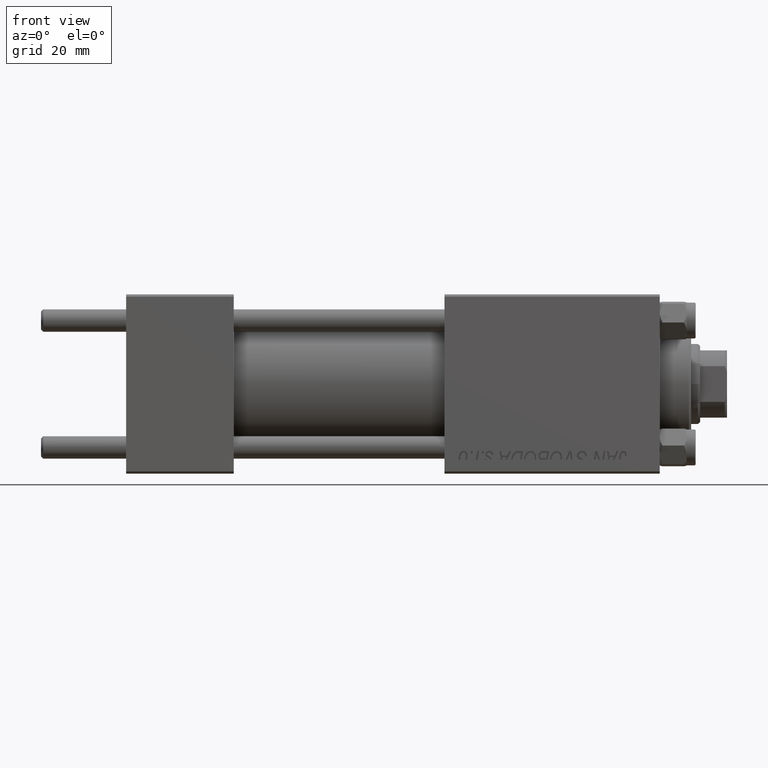
[diagram: clean part render]
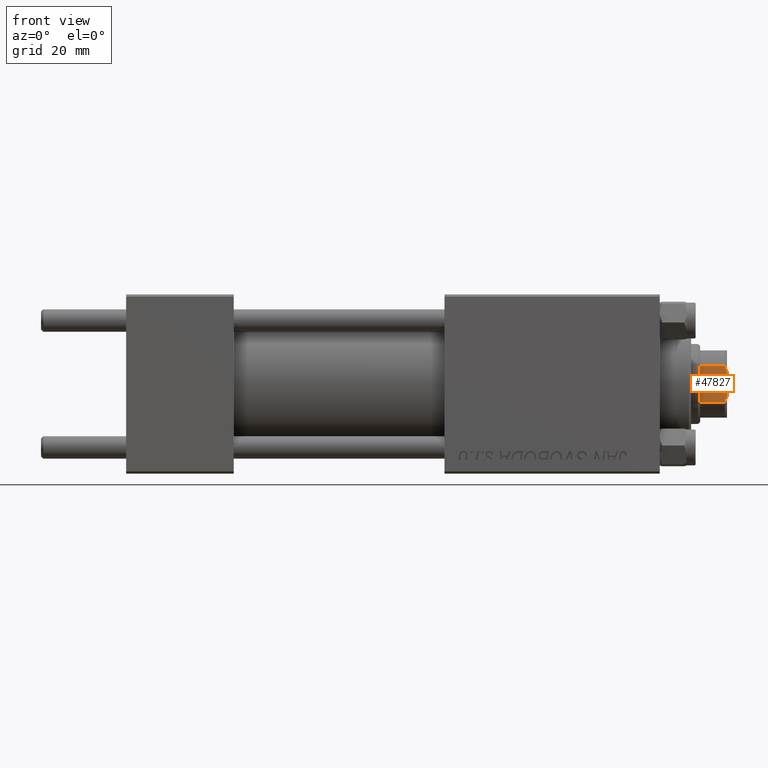
[diagram: same view with one face highlighted and labeled with its STEP entity id]
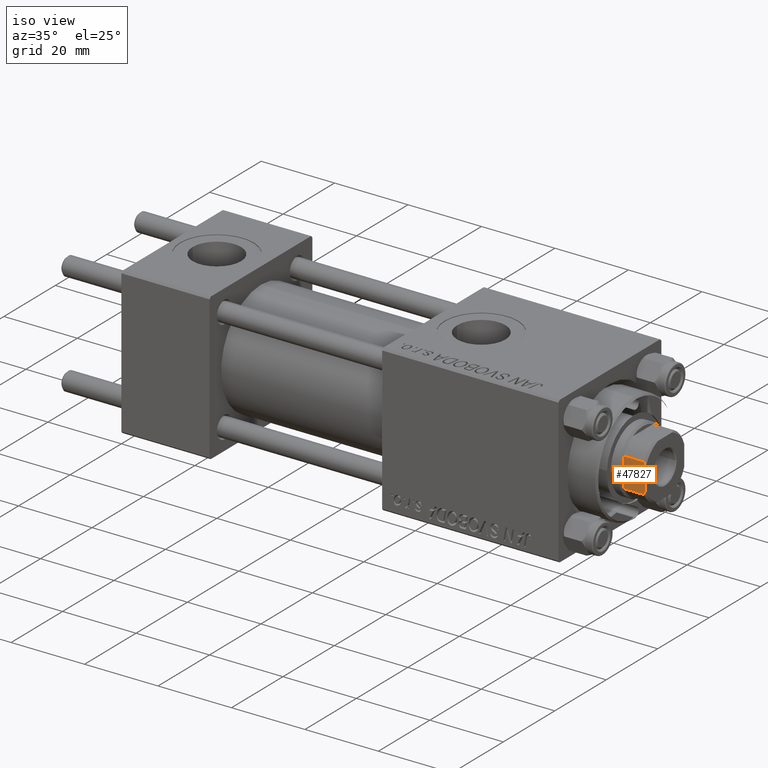
[diagram: same view with one face highlighted and labeled with its STEP entity id]
A machine part, front view. The second image highlights one B-rep face of the part: STEP entity #47827.
A second angle (iso view) of the same face is appended — the face is thin or edge-on in the first view.
In plain terms, the highlighted planar face has unit normal (0, 1, 0).
Its self-contained STEP definition (entity closure, byte-faithful):
#447 = DIRECTION ( 'NONE',  ( -1.156482317317871478E-16, 1.000000000000000000, -0.000000000000000000 ) ) ;
#2393 = VECTOR ( 'NONE', #15925, 1000.000000000000000 ) ;
#3613 = VERTEX_POINT ( 'NONE', #12826 ) ;
#4185 = ORIENTED_EDGE ( 'NONE', *, *, #33250, .F. ) ;
#5943 = CARTESIAN_POINT ( 'NONE',  ( 7.500000000000000000, 4.000000000000001776, 109.4999999999998579 ) ) ;
#6188 = CARTESIAN_POINT ( 'NONE',  ( 7.500000000000000000, -4.000000000000002665, 104.0000000000000000 ) ) ;
#7766 = LINE ( 'NONE', #30988, #47276 ) ;
#9185 = VERTEX_POINT ( 'NONE', #24088 ) ;
#11332 = EDGE_CURVE ( 'NONE', #9185, #34118, #30903, .T. ) ;
#11521 = CARTESIAN_POINT ( 'NONE',  ( 7.500000000000000000, 7.500000000000000000, 110.0000000000000000 ) ) ;
#12455 = EDGE_CURVE ( 'NONE', #17513, #34118, #27296, .T. ) ;
#12826 = CARTESIAN_POINT ( 'NONE',  ( 7.500000000000000000, 4.000000000000001776, 103.9999999999999716 ) ) ;
#14045 = EDGE_LOOP ( 'NONE', ( #23816, #24389, #4185, #47335, #48042, #17216 ) ) ;
#15294 = LINE ( 'NONE', #23121, #17636 ) ;
#15925 = DIRECTION ( 'NONE',  ( -0.000000000000000000, -0.000000000000000000, 1.000000000000000000 ) ) ;
#17216 = ORIENTED_EDGE ( 'NONE', *, *, #18115, .T. ) ;
#17250 = CARTESIAN_POINT ( 'NONE',  ( 7.500000000000000888, 3.198463757182493428, 109.8557317173096379 ) ) ;
#17513 = VERTEX_POINT ( 'NONE', #6188 ) ;
#17636 = VECTOR ( 'NONE', #29947, 1000.000000000000000 ) ;
#18115 = EDGE_CURVE ( 'NONE', #17513, #3613, #7766, .T. ) ;
#18497 = CARTESIAN_POINT ( 'NONE',  ( 7.500000000000000000, 7.500000000000000000, 110.0000000000000000 ) ) ;
#23121 = CARTESIAN_POINT ( 'NONE',  ( 7.500000000000000000, 4.000000000000001776, -0.001000000000001000089 ) ) ;
#23816 = ORIENTED_EDGE ( 'NONE', *, *, #28129, .T. ) ;
#24088 = CARTESIAN_POINT ( 'NONE',  ( 7.500000000000000888, -2.783882181414683465, 110.0000000000000000 ) ) ;
#24389 = ORIENTED_EDGE ( 'NONE', *, *, #48569, .T. ) ;
#25332 = CARTESIAN_POINT ( 'NONE',  ( 7.500000000000000000, 3.602928590769622907, 109.6868571337553675 ) ) ;
#25897 = VECTOR ( 'NONE', #42316, 1000.000000000000000 ) ;
#26826 = DIRECTION ( 'NONE',  ( 1.156482317317871478E-16, -1.000000000000000000, 0.000000000000000000 ) ) ;
#27296 = LINE ( 'NONE', #46713, #2393 ) ;
#27914 = AXIS2_PLACEMENT_3D ( 'NONE', #18497, #29601, #26826 ) ;
#28129 = EDGE_CURVE ( 'NONE', #3613, #31376, #15294, .T. ) ;
#29601 = DIRECTION ( 'NONE',  ( -1.000000000000000000, -1.156482317317871478E-16, 0.000000000000000000 ) ) ;
#29947 = DIRECTION ( 'NONE',  ( -0.000000000000000000, -0.000000000000000000, 1.000000000000000000 ) ) ;
#30449 = LINE ( 'NONE', #11521, #25897 ) ;
#30903 = B_SPLINE_CURVE_WITH_KNOTS ( 'NONE', 3,
 ( #44473, #43485, #39687, #39932 ),
 .UNSPECIFIED., .F., .F.,
 ( 4, 4 ),
 ( 4.336808689942017736E-19, 0.001314892599675292944 ),
 .UNSPECIFIED. ) ;
#30988 = CARTESIAN_POINT ( 'NONE',  ( 7.500000000000000000, 7.500000000000000000, 104.0000000000000000 ) ) ;
#31376 = VERTEX_POINT ( 'NONE', #5943 ) ;
#32225 = CARTESIAN_POINT ( 'NONE',  ( 7.500000000000000888, 2.783882181414685686, 110.0000000000000000 ) ) ;
#33250 = EDGE_CURVE ( 'NONE', #9185, #44267, #30449, .T. ) ;
#33386 = PLANE ( 'NONE',  #27914 ) ;
#34118 = VERTEX_POINT ( 'NONE', #40568 ) ;
#39669 = B_SPLINE_CURVE_WITH_KNOTS ( 'NONE', 3,
 ( #41218, #25332, #17250, #48015 ),
 .UNSPECIFIED., .F., .F.,
 ( 4, 4 ),
 ( 9.540979117872439019E-18, 0.001314892599675281451 ),
 .UNSPECIFIED. ) ;
#39687 = CARTESIAN_POINT ( 'NONE',  ( 7.500000000000001776, -3.602928590769614914, 109.6868571337553675 ) ) ;
#39932 = CARTESIAN_POINT ( 'NONE',  ( 7.500000000000000000, -4.000000000000002665, 109.4999999999998579 ) ) ;
#40568 = CARTESIAN_POINT ( 'NONE',  ( 7.500000000000000000, -4.000000000000002665, 109.4999999999998579 ) ) ;
#41218 = CARTESIAN_POINT ( 'NONE',  ( 7.500000000000000000, 4.000000000000001776, 109.4999999999998579 ) ) ;
#42316 = DIRECTION ( 'NONE',  ( -1.156482317317871478E-16, 1.000000000000000000, -0.000000000000000000 ) ) ;
#43485 = CARTESIAN_POINT ( 'NONE',  ( 7.500000000000000888, -3.198463757182497869, 109.8557317173096379 ) ) ;
#44267 = VERTEX_POINT ( 'NONE', #32225 ) ;
#44473 = CARTESIAN_POINT ( 'NONE',  ( 7.500000000000000888, -2.783882181414683465, 110.0000000000000000 ) ) ;
#44998 = FACE_OUTER_BOUND ( 'NONE', #14045, .T. ) ;
#46713 = CARTESIAN_POINT ( 'NONE',  ( 7.500000000000000000, -4.000000000000002665, -0.001000000000001000089 ) ) ;
#47276 = VECTOR ( 'NONE', #447, 1000.000000000000000 ) ;
#47335 = ORIENTED_EDGE ( 'NONE', *, *, #11332, .T. ) ;
#47827 = ADVANCED_FACE ( 'NONE', ( #44998 ), #33386, .F. ) ;
#48015 = CARTESIAN_POINT ( 'NONE',  ( 7.500000000000000888, 2.783882181414685686, 110.0000000000000000 ) ) ;
#48042 = ORIENTED_EDGE ( 'NONE', *, *, #12455, .F. ) ;
#48569 = EDGE_CURVE ( 'NONE', #31376, #44267, #39669, .T. ) ;